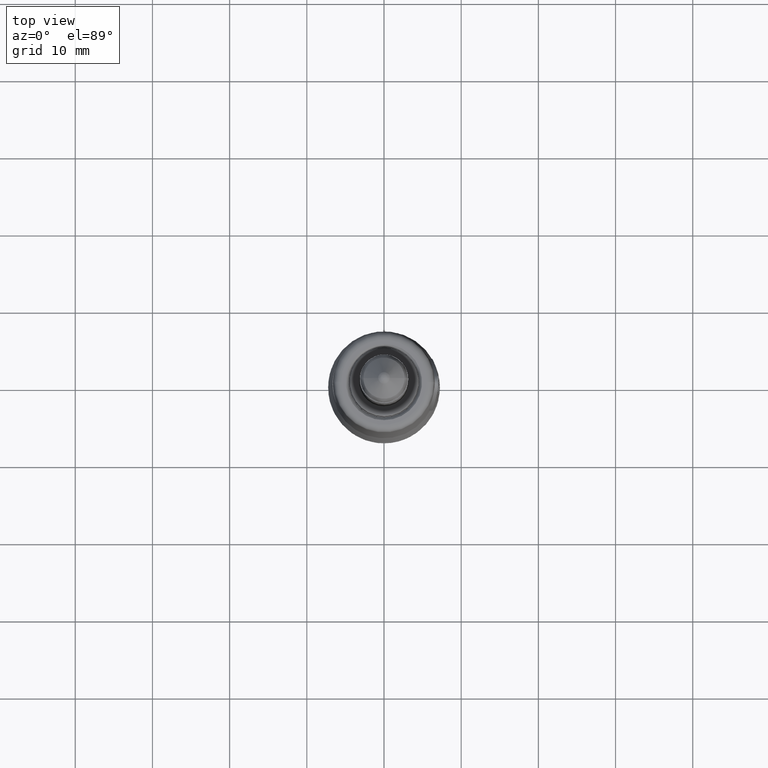
[diagram: clean part render]
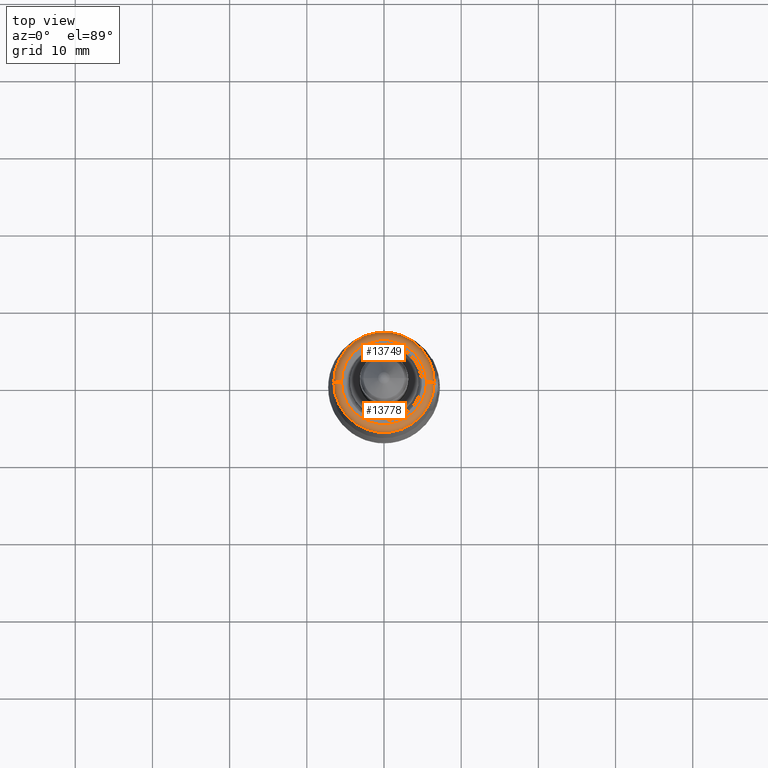
[diagram: same view with one multi-face feature highlighted, each face labeled with its STEP entity id]
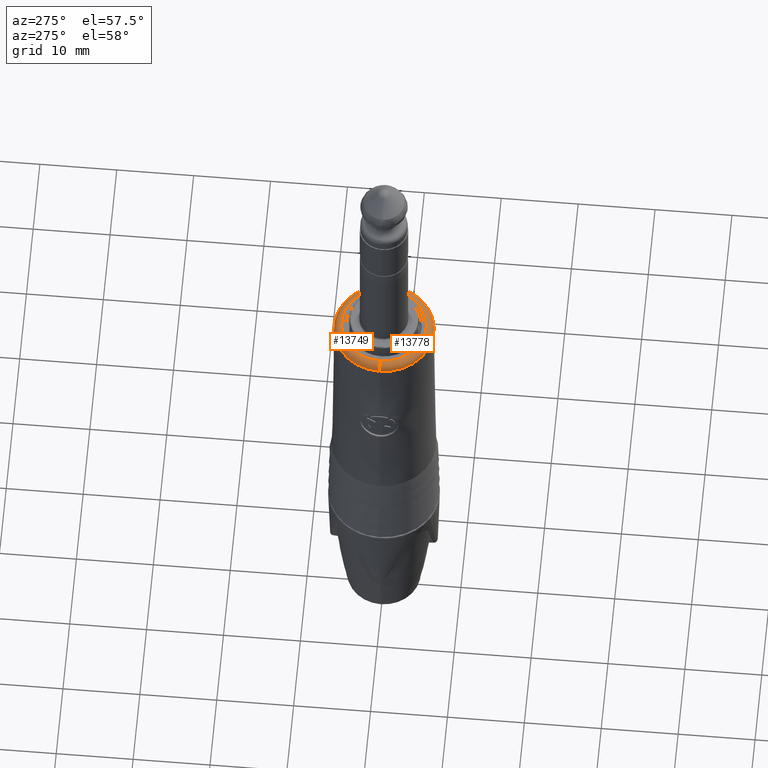
[diagram: same view with one multi-face feature highlighted, each face labeled with its STEP entity id]
A machine part, top view. The highlighted faces form ONE feature: a constant-radius fillet chain: 2 tangent blend faces with common blend radius 1 mm. The faces share edges in the B-rep.
A second angle (auxiliary view) of the same feature is appended — it is thin or edge-on in the first view.
Their STEP definitions:
[1] entity #13778 (Torus):
#4441=CARTESIAN_POINT('',(5.510136545599E0,0.E0,-2.5E0));
#4442=DIRECTION('',(0.E0,1.E0,0.E0));
#4443=DIRECTION('',(0.E0,0.E0,1.E0));
#4444=AXIS2_PLACEMENT_3D('',#4441,#4442,#4443);
#4456=CARTESIAN_POINT('',(0.E0,0.E0,-1.5E0));
#4457=DIRECTION('',(0.E0,0.E0,1.E0));
#4458=DIRECTION('',(-1.E0,0.E0,0.E0));
#4459=AXIS2_PLACEMENT_3D('',#4456,#4457,#4458);
#4461=CARTESIAN_POINT('',(0.E0,0.E0,-2.489812080527E0));
#4462=DIRECTION('',(0.E0,0.E0,1.E0));
#4463=DIRECTION('',(-1.E0,0.E0,0.E0));
#4464=AXIS2_PLACEMENT_3D('',#4461,#4462,#4463);
#4466=CARTESIAN_POINT('',(-5.510136545599E0,0.E0,-2.5E0));
#4467=DIRECTION('',(0.E0,-1.E0,0.E0));
#4468=DIRECTION('',(0.E0,0.E0,1.E0));
#4469=AXIS2_PLACEMENT_3D('',#4466,#4467,#4468);
#5440=CARTESIAN_POINT('',(5.510136437185E0,0.E0,-1.5E0));
#5441=CARTESIAN_POINT('',(-5.510136437185E0,0.E0,-1.5E0));
#5442=VERTEX_POINT('',#5440);
#5443=VERTEX_POINT('',#5441);
#5444=CARTESIAN_POINT('',(6.510084647401E0,0.E0,-2.489812080527E0));
#5445=CARTESIAN_POINT('',(-6.510084647400E0,0.E0,-2.489812080527E0));
#5446=VERTEX_POINT('',#5444);
#5447=VERTEX_POINT('',#5445);
#13767=CARTESIAN_POINT('',(0.E0,0.E0,-2.5E0));
#13768=DIRECTION('',(0.E0,0.E0,1.E0));
#13769=DIRECTION('',(-9.999457496893E-1,1.041622188105E-2,0.E0));
#13770=AXIS2_PLACEMENT_3D('',#13767,#13768,#13769);
#13771=TOROIDAL_SURFACE('',#13770,5.510136545599E0,1.E0);
#13772=ORIENTED_EDGE('',*,*,#13756,.T.);
#13773=ORIENTED_EDGE('',*,*,#13745,.T.);
#13774=ORIENTED_EDGE('',*,*,#13509,.F.);
#13775=ORIENTED_EDGE('',*,*,#13742,.F.);
#13776=EDGE_LOOP('',(#13772,#13773,#13774,#13775));
#13777=FACE_OUTER_BOUND('',#13776,.F.);
#13778=ADVANCED_FACE('',(#13777),#13771,.T.);
#4445=CIRCLE('',#4444,1.E0);
#4460=CIRCLE('',#4459,5.510136437185E0);
#4465=CIRCLE('',#4464,6.510084647400E0);
#4470=CIRCLE('',#4469,1.E0);
#13509=EDGE_CURVE('',#5447,#5446,#4465,.T.);
#13742=EDGE_CURVE('',#5443,#5447,#4470,.T.);
#13745=EDGE_CURVE('',#5442,#5446,#4445,.T.);
#13756=EDGE_CURVE('',#5443,#5442,#4460,.T.);
[2] entity #13749 (Torus):
#4431=CARTESIAN_POINT('',(0.E0,0.E0,-1.5E0));
#4432=DIRECTION('',(0.E0,0.E0,1.E0));
#4433=DIRECTION('',(1.E0,0.E0,0.E0));
#4434=AXIS2_PLACEMENT_3D('',#4431,#4432,#4433);
#4436=CARTESIAN_POINT('',(0.E0,0.E0,-2.489812080527E0));
#4437=DIRECTION('',(0.E0,0.E0,1.E0));
#4438=DIRECTION('',(1.E0,0.E0,0.E0));
#4439=AXIS2_PLACEMENT_3D('',#4436,#4437,#4438);
#4441=CARTESIAN_POINT('',(5.510136545599E0,0.E0,-2.5E0));
#4442=DIRECTION('',(0.E0,1.E0,0.E0));
#4443=DIRECTION('',(0.E0,0.E0,1.E0));
#4444=AXIS2_PLACEMENT_3D('',#4441,#4442,#4443);
#4466=CARTESIAN_POINT('',(-5.510136545599E0,0.E0,-2.5E0));
#4467=DIRECTION('',(0.E0,-1.E0,0.E0));
#4468=DIRECTION('',(0.E0,0.E0,1.E0));
#4469=AXIS2_PLACEMENT_3D('',#4466,#4467,#4468);
#5440=CARTESIAN_POINT('',(5.510136437185E0,0.E0,-1.5E0));
#5441=CARTESIAN_POINT('',(-5.510136437185E0,0.E0,-1.5E0));
#5442=VERTEX_POINT('',#5440);
#5443=VERTEX_POINT('',#5441);
#5444=CARTESIAN_POINT('',(6.510084647401E0,0.E0,-2.489812080527E0));
#5445=CARTESIAN_POINT('',(-6.510084647400E0,0.E0,-2.489812080527E0));
#5446=VERTEX_POINT('',#5444);
#5447=VERTEX_POINT('',#5445);
#13735=CARTESIAN_POINT('',(0.E0,0.E0,-2.5E0));
#13736=DIRECTION('',(0.E0,0.E0,1.E0));
#13737=DIRECTION('',(9.999457496893E-1,-1.041622188105E-2,0.E0));
#13738=AXIS2_PLACEMENT_3D('',#13735,#13736,#13737);
#13739=TOROIDAL_SURFACE('',#13738,5.510136545599E0,1.E0);
#13741=ORIENTED_EDGE('',*,*,#13740,.T.);
#13743=ORIENTED_EDGE('',*,*,#13742,.T.);
#13744=ORIENTED_EDGE('',*,*,#13623,.F.);
#13746=ORIENTED_EDGE('',*,*,#13745,.F.);
#13747=EDGE_LOOP('',(#13741,#13743,#13744,#13746));
#13748=FACE_OUTER_BOUND('',#13747,.F.);
#13749=ADVANCED_FACE('',(#13748),#13739,.T.);
#4435=CIRCLE('',#4434,5.510136437185E0);
#4440=CIRCLE('',#4439,6.510084647400E0);
#4445=CIRCLE('',#4444,1.E0);
#4470=CIRCLE('',#4469,1.E0);
#13623=EDGE_CURVE('',#5446,#5447,#4440,.T.);
#13740=EDGE_CURVE('',#5442,#5443,#4435,.T.);
#13742=EDGE_CURVE('',#5443,#5447,#4470,.T.);
#13745=EDGE_CURVE('',#5442,#5446,#4445,.T.);